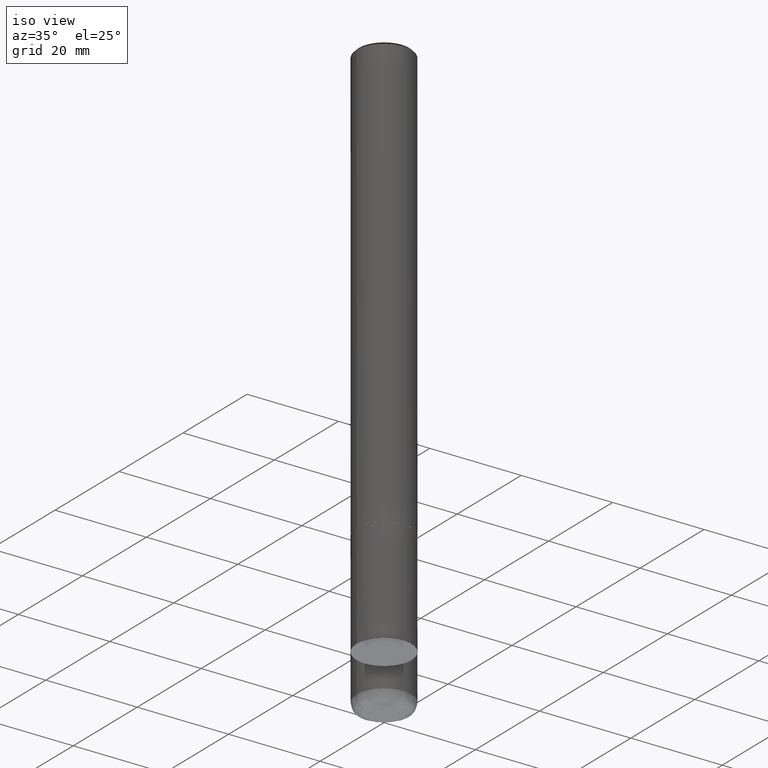
[diagram: clean part render]
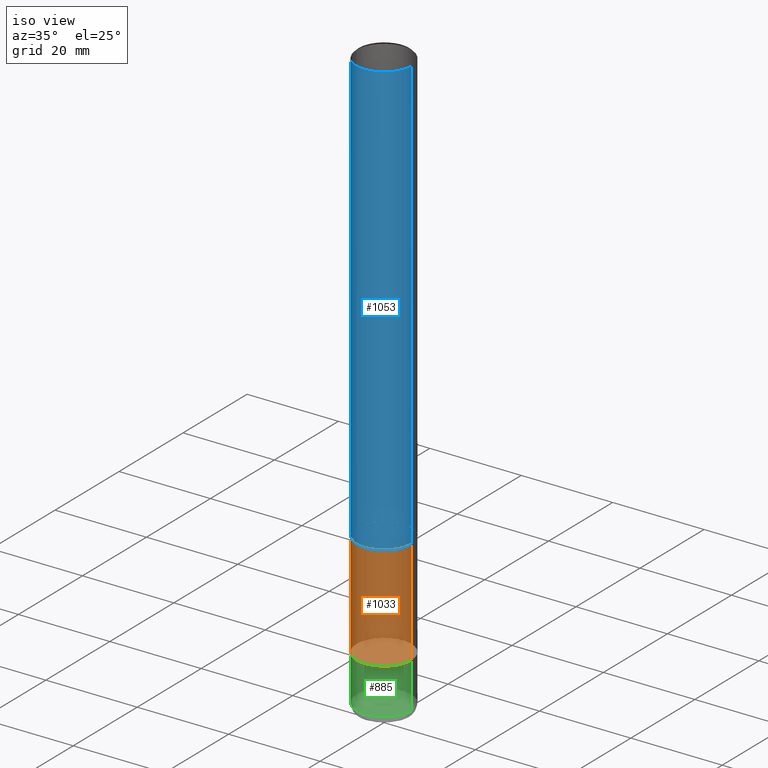
[diagram: same view with three faces highlighted in distinct colors, each labeled with its STEP entity id]
A machine part, iso view with three faces highlighted in distinct colors.
Their STEP definitions:

[orange] entity #1033 — the highlighted face is a freeform B-spline surface patch.
#708=CARTESIAN_POINT('',(6.0,0.0,-23.0));
#712=CARTESIAN_POINT('',(-6.0,0.0,-23.0));
#723=CARTESIAN_POINT('',(-6.0,-6.0,-23.0));
#724=CARTESIAN_POINT('',(0.0,-6.0,-23.0));
#725=CARTESIAN_POINT('',(6.0,-6.0,-23.0));
#726=CARTESIAN_POINT('',(6.0,0.0,0.0));
#730=CARTESIAN_POINT('',(-6.0,0.0,0.0));
#742=CARTESIAN_POINT('',(-6.0,-6.0,0.0));
#743=CARTESIAN_POINT('',(0.0,-6.0,0.0));
#744=CARTESIAN_POINT('',(6.0,-6.0,0.0));
#1014=(
BOUNDED_SURFACE()
B_SPLINE_SURFACE(1,2,(
(#712,#723,#724,#725,#708),
(#730,#742,#743,#744,#726)
), .UNSPECIFIED.,.F.,.F.,.F.)
B_SPLINE_SURFACE_WITH_KNOTS((2,2),(3,2,3),(
0.0,1.0),(
0.0,0.5,1.0), .UNSPECIFIED.)
GEOMETRIC_REPRESENTATION_ITEM()
RATIONAL_B_SPLINE_SURFACE(((1.0,0.707106781187,1.0,0.707106781187,1.0),
(1.0,0.707106781187,1.0,0.707106781187,1.0)
))
REPRESENTATION_ITEM('')
SURFACE()
);
#1015=(
BOUNDED_CURVE()
B_SPLINE_CURVE(1,(#730,#712),.UNSPECIFIED.,.F.,.F.)
B_SPLINE_CURVE_WITH_KNOTS((2,2),
(0.0,1.0),.UNSPECIFIED.)
CURVE()
GEOMETRIC_REPRESENTATION_ITEM()
RATIONAL_B_SPLINE_CURVE((1.0,1.0))
REPRESENTATION_ITEM('')
);
#1016=(
BOUNDED_CURVE()
B_SPLINE_CURVE(2,(#712,#723,#724,#725,#708),.UNSPECIFIED.,.F.,.F.)
B_SPLINE_CURVE_WITH_KNOTS((3,2,3),
(0.0,0.5,1.0),.UNSPECIFIED.)
CURVE()
GEOMETRIC_REPRESENTATION_ITEM()
RATIONAL_B_SPLINE_CURVE((1.0,0.707106781187,1.0,0.707106781187,1.0))
REPRESENTATION_ITEM('')
);
#1017=(
BOUNDED_CURVE()
B_SPLINE_CURVE(1,(#708,#726),.UNSPECIFIED.,.F.,.F.)
B_SPLINE_CURVE_WITH_KNOTS((2,2),
(0.0,1.0),.UNSPECIFIED.)
CURVE()
GEOMETRIC_REPRESENTATION_ITEM()
RATIONAL_B_SPLINE_CURVE((1.0,1.0))
REPRESENTATION_ITEM('')
);
#1018=(
BOUNDED_CURVE()
B_SPLINE_CURVE(2,(#726,#744,#743,#742,#730),.UNSPECIFIED.,.F.,.F.)
B_SPLINE_CURVE_WITH_KNOTS((3,2,3),
(0.0,0.5,1.0),.UNSPECIFIED.)
CURVE()
GEOMETRIC_REPRESENTATION_ITEM()
RATIONAL_B_SPLINE_CURVE((1.0,0.707106781187,1.0,0.707106781187,1.0))
REPRESENTATION_ITEM('')
);
#1019=VERTEX_POINT('',#708);
#1020=VERTEX_POINT('',#712);
#1021=VERTEX_POINT('',#726);
#1022=VERTEX_POINT('',#730);
#1023=EDGE_CURVE('',#1022,#1020,#1015,.T.);
#1024=EDGE_CURVE('',#1020,#1019,#1016,.T.);
#1025=EDGE_CURVE('',#1019,#1021,#1017,.T.);
#1026=EDGE_CURVE('',#1021,#1022,#1018,.T.);
#1027=ORIENTED_EDGE('',*,*,#1023,.T.);
#1028=ORIENTED_EDGE('',*,*,#1024,.T.);
#1029=ORIENTED_EDGE('',*,*,#1025,.T.);
#1030=ORIENTED_EDGE('',*,*,#1026,.T.);
#1031=EDGE_LOOP('',(#1027,#1028,#1029,#1030));
#1032=FACE_OUTER_BOUND('',#1031,.T.);
#1033=ADVANCED_FACE('',(#1032),#1014,.T.);

[blue] entity #1053 — the highlighted face is a freeform B-spline surface patch.
#726=CARTESIAN_POINT('',(6.0,0.0,0.0));
#730=CARTESIAN_POINT('',(-6.0,0.0,0.0));
#731=CARTESIAN_POINT('',(6.0,0.0,94.5));
#735=CARTESIAN_POINT('',(-6.0,0.0,94.5));
#742=CARTESIAN_POINT('',(-6.0,-6.0,0.0));
#743=CARTESIAN_POINT('',(0.0,-6.0,0.0));
#744=CARTESIAN_POINT('',(6.0,-6.0,0.0));
#745=CARTESIAN_POINT('',(-6.0,-6.0,94.5));
#746=CARTESIAN_POINT('',(0.0,-6.0,94.5));
#747=CARTESIAN_POINT('',(6.0,-6.0,94.5));
#1034=(
BOUNDED_SURFACE()
B_SPLINE_SURFACE(1,2,(
(#730,#742,#743,#744,#726),
(#735,#745,#746,#747,#731)
), .UNSPECIFIED.,.F.,.F.,.F.)
B_SPLINE_SURFACE_WITH_KNOTS((2,2),(3,2,3),(
0.0,1.0),(
0.0,0.5,1.0), .UNSPECIFIED.)
GEOMETRIC_REPRESENTATION_ITEM()
RATIONAL_B_SPLINE_SURFACE(((1.0,0.707106781187,1.0,0.707106781187,1.0),
(1.0,0.707106781187,1.0,0.707106781187,1.0)
))
REPRESENTATION_ITEM('')
SURFACE()
);
#1035=(
BOUNDED_CURVE()
B_SPLINE_CURVE(1,(#735,#730),.UNSPECIFIED.,.F.,.F.)
B_SPLINE_CURVE_WITH_KNOTS((2,2),
(0.0,1.0),.UNSPECIFIED.)
CURVE()
GEOMETRIC_REPRESENTATION_ITEM()
RATIONAL_B_SPLINE_CURVE((1.0,1.0))
REPRESENTATION_ITEM('')
);
#1036=(
BOUNDED_CURVE()
B_SPLINE_CURVE(2,(#730,#742,#743,#744,#726),.UNSPECIFIED.,.F.,.F.)
B_SPLINE_CURVE_WITH_KNOTS((3,2,3),
(0.0,0.5,1.0),.UNSPECIFIED.)
CURVE()
GEOMETRIC_REPRESENTATION_ITEM()
RATIONAL_B_SPLINE_CURVE((1.0,0.707106781187,1.0,0.707106781187,1.0))
REPRESENTATION_ITEM('')
);
#1037=(
BOUNDED_CURVE()
B_SPLINE_CURVE(1,(#726,#731),.UNSPECIFIED.,.F.,.F.)
B_SPLINE_CURVE_WITH_KNOTS((2,2),
(0.0,1.0),.UNSPECIFIED.)
CURVE()
GEOMETRIC_REPRESENTATION_ITEM()
RATIONAL_B_SPLINE_CURVE((1.0,1.0))
REPRESENTATION_ITEM('')
);
#1038=(
BOUNDED_CURVE()
B_SPLINE_CURVE(2,(#731,#747,#746,#745,#735),.UNSPECIFIED.,.F.,.F.)
B_SPLINE_CURVE_WITH_KNOTS((3,2,3),
(0.0,0.5,1.0),.UNSPECIFIED.)
CURVE()
GEOMETRIC_REPRESENTATION_ITEM()
RATIONAL_B_SPLINE_CURVE((1.0,0.707106781187,1.0,0.707106781187,1.0))
REPRESENTATION_ITEM('')
);
#1039=VERTEX_POINT('',#726);
#1040=VERTEX_POINT('',#730);
#1041=VERTEX_POINT('',#731);
#1042=VERTEX_POINT('',#735);
#1043=EDGE_CURVE('',#1042,#1040,#1035,.T.);
#1044=EDGE_CURVE('',#1040,#1039,#1036,.T.);
#1045=EDGE_CURVE('',#1039,#1041,#1037,.T.);
#1046=EDGE_CURVE('',#1041,#1042,#1038,.T.);
#1047=ORIENTED_EDGE('',*,*,#1043,.T.);
#1048=ORIENTED_EDGE('',*,*,#1044,.T.);
#1049=ORIENTED_EDGE('',*,*,#1045,.T.);
#1050=ORIENTED_EDGE('',*,*,#1046,.T.);
#1051=EDGE_LOOP('',(#1047,#1048,#1049,#1050));
#1052=FACE_OUTER_BOUND('',#1051,.T.);
#1053=ADVANCED_FACE('',(#1052),#1034,.T.);

[green] entity #885 — the highlighted face is a freeform B-spline surface patch.
#703=CARTESIAN_POINT('',(6.0,0.0,-33.0));
#707=CARTESIAN_POINT('',(-6.0,0.0,-33.0));
#708=CARTESIAN_POINT('',(6.0,0.0,-23.0));
#712=CARTESIAN_POINT('',(-6.0,0.0,-23.0));
#720=CARTESIAN_POINT('',(-6.0,-6.0,-33.0));
#721=CARTESIAN_POINT('',(0.0,-6.0,-33.0));
#722=CARTESIAN_POINT('',(6.0,-6.0,-33.0));
#723=CARTESIAN_POINT('',(-6.0,-6.0,-23.0));
#724=CARTESIAN_POINT('',(0.0,-6.0,-23.0));
#725=CARTESIAN_POINT('',(6.0,-6.0,-23.0));
#866=(
BOUNDED_SURFACE()
B_SPLINE_SURFACE(1,2,(
(#707,#720,#721,#722,#703),
(#712,#723,#724,#725,#708)
), .UNSPECIFIED.,.F.,.F.,.F.)
B_SPLINE_SURFACE_WITH_KNOTS((2,2),(3,2,3),(
0.0,1.0),(
0.0,0.5,1.0), .UNSPECIFIED.)
GEOMETRIC_REPRESENTATION_ITEM()
RATIONAL_B_SPLINE_SURFACE(((1.0,0.707106781187,1.0,0.707106781187,1.0),
(1.0,0.707106781187,1.0,0.707106781187,1.0)
))
REPRESENTATION_ITEM('')
SURFACE()
);
#867=(
BOUNDED_CURVE()
B_SPLINE_CURVE(1,(#712,#707),.UNSPECIFIED.,.F.,.F.)
B_SPLINE_CURVE_WITH_KNOTS((2,2),
(0.0,1.0),.UNSPECIFIED.)
CURVE()
GEOMETRIC_REPRESENTATION_ITEM()
RATIONAL_B_SPLINE_CURVE((1.0,1.0))
REPRESENTATION_ITEM('')
);
#868=(
BOUNDED_CURVE()
B_SPLINE_CURVE(2,(#707,#720,#721,#722,#703),.UNSPECIFIED.,.F.,.F.)
B_SPLINE_CURVE_WITH_KNOTS((3,2,3),
(0.0,0.5,1.0),.UNSPECIFIED.)
CURVE()
GEOMETRIC_REPRESENTATION_ITEM()
RATIONAL_B_SPLINE_CURVE((1.0,0.707106781187,1.0,0.707106781187,1.0))
REPRESENTATION_ITEM('')
);
#869=(
BOUNDED_CURVE()
B_SPLINE_CURVE(1,(#703,#708),.UNSPECIFIED.,.F.,.F.)
B_SPLINE_CURVE_WITH_KNOTS((2,2),
(0.0,1.0),.UNSPECIFIED.)
CURVE()
GEOMETRIC_REPRESENTATION_ITEM()
RATIONAL_B_SPLINE_CURVE((1.0,1.0))
REPRESENTATION_ITEM('')
);
#870=(
BOUNDED_CURVE()
B_SPLINE_CURVE(2,(#708,#725,#724,#723,#712),.UNSPECIFIED.,.F.,.F.)
B_SPLINE_CURVE_WITH_KNOTS((3,2,3),
(0.0,0.5,1.0),.UNSPECIFIED.)
CURVE()
GEOMETRIC_REPRESENTATION_ITEM()
RATIONAL_B_SPLINE_CURVE((1.0,0.707106781187,1.0,0.707106781187,1.0))
REPRESENTATION_ITEM('')
);
#871=VERTEX_POINT('',#703);
#872=VERTEX_POINT('',#707);
#873=VERTEX_POINT('',#708);
#874=VERTEX_POINT('',#712);
#875=EDGE_CURVE('',#874,#872,#867,.T.);
#876=EDGE_CURVE('',#872,#871,#868,.T.);
#877=EDGE_CURVE('',#871,#873,#869,.T.);
#878=EDGE_CURVE('',#873,#874,#870,.T.);
#879=ORIENTED_EDGE('',*,*,#875,.T.);
#880=ORIENTED_EDGE('',*,*,#876,.T.);
#881=ORIENTED_EDGE('',*,*,#877,.T.);
#882=ORIENTED_EDGE('',*,*,#878,.T.);
#883=EDGE_LOOP('',(#879,#880,#881,#882));
#884=FACE_OUTER_BOUND('',#883,.T.);
#885=ADVANCED_FACE('',(#884),#866,.T.);